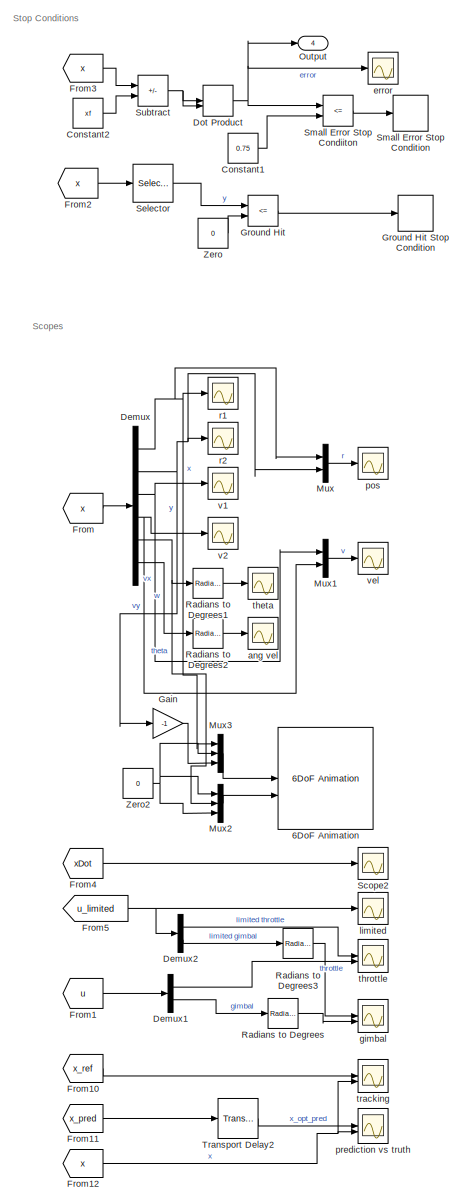
[diagram: root canvas - part 1/2, right side, full height]
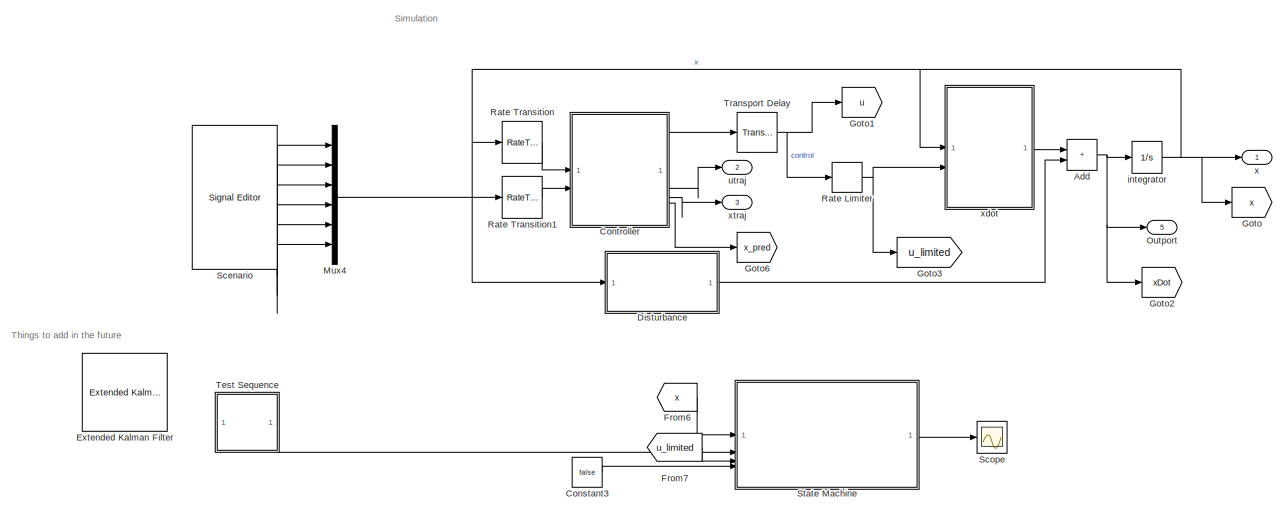
[diagram: root canvas - part 2/2, central region]
MODEL slx_7421cda2e43f
KIND model
CONFIG AbsTol = auto
CONFIG EnableMultiTasking = off
CONFIG FixedStep = auto
CONFIG MaxStep = auto
CONFIG MinStep = auto
CONFIG RelTol = 1e-3
CONFIG SampleTimeConstraint = Unconstrained
CONFIG SolverName = VariableStepAuto
CONFIG StartTime = 0.0
CONFIG StopTime = stop_time
WORKSPACE source: mxarray member
WORKSPACE com_error = 0
WORKSPACE controller_type: ControllerType (value not decoded)
WORKSPACE discrepancy = 0.5
WORKSPACE dtime = 0.3
WORKSPACE enable_turbulence = 0
WORKSPACE g = 9.8
WORKSPACE inertia_error = 0
WORKSPACE mass_error = 0
WORKSPACE max_gimbal_rate = 1
WORKSPACE max_iter = 400
WORKSPACE max_throttle_rate = 0.05
WORKSPACE nominal_val = 5
WORKSPACE optimization_time = 0.3
WORKSPACE steps = 50
WORKSPACE stop_time = 100
WORKSPACE u0 = [0.443891402715 0]
WORKSPACE vehicle: Vehicle (value not decoded)
WORKSPACE x0 = [100 100 0 0 1.57079632679 0]
WORKSPACE xf = [0 0 0 0 1.57079632679 0]
BLOCK [Reference] 6DoF Animation  REF=aerolibanim/6DoF Animation
  Commented = on
  SourceBlock = aerolibanim/6DoF Animation
  SourceType = 6DoF_Animation
BLOCK [Sum] Add
  IconShape = rectangular
BLOCK [Constant] Constant1
  Value = 0.75
BLOCK [Constant] Constant2
  Value = xf
BLOCK [Constant] Constant3
  Value = false
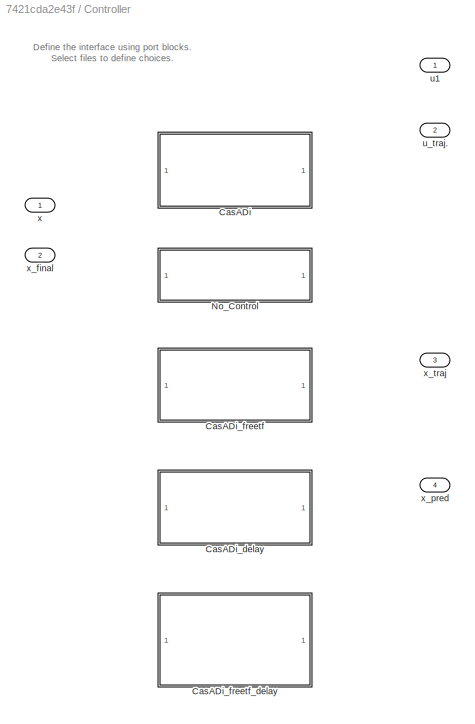
BLOCK [SubSystem] Controller
  Variant = on
  VariantChoicesEnumeration = ControllerType
  VariantChoicesSpecifier = {}
  VariantControlVariable = controller_type
BLOCK [SubSystem] Controller/CasADi
  ReferencedSubsystem = CasADi
  VariantControl = controller_type == ControllerType.CasADi
BLOCK [SubSystem] Controller/CasADi_delay
  ReferencedSubsystem = CasADi_delay
  VariantControl = controller_type == ControllerType.CasADi_delay
BLOCK [SubSystem] Controller/CasADi_freetf
  ReferencedSubsystem = CasADi_freetf
  VariantControl = controller_type == ControllerType.CasADi_freetf
BLOCK [SubSystem] Controller/CasADi_freetf_delay
  ReferencedSubsystem = CasADi_freetf_delay
  VariantControl = controller_type == ControllerType.CasADi_freetf_delay
BLOCK [SubSystem] Controller/No_Control
  ReferencedSubsystem = No_Control
  VariantControl = controller_type == ControllerType.No_Control
BLOCK [Outport] Controller/u1
BLOCK [Outport] Controller/u_traj.
  Port = 2
BLOCK [Inport] Controller/x
BLOCK [Inport] Controller/x_final
  Port = 2
BLOCK [Outport] Controller/x_pred
  Port = 4
BLOCK [Outport] Controller/x_traj
  Port = 3
BLOCK [Demux] Demux
  Outputs = 6
BLOCK [Demux] Demux1
  Outputs = 2
BLOCK [Demux] Demux2
  Outputs = 2
BLOCK [SubSystem] Disturbance
  ReferencedSubsystem = Disturbance
BLOCK [DotProduct] Dot Product
  OutDataTypeStr = Inherit: Inherit via internal rule
BLOCK [Reference] Extended Kalman Filter  REF=sharedTrackingLibrary/Extended Kalman Filter
  Commented = on
  LibrarySourceBlock = cstblocks/State Estimation/Extended Kalman Filter
  SourceBlock = sharedTrackingLibrary/Extended Kalman Filter
  SourceType = Extended Kalman Filter
BLOCK [From] From
  GotoTag = x
BLOCK [From] From1
  GotoTag = u
BLOCK [From] From10
  GotoTag = x_ref
BLOCK [From] From11
  GotoTag = x_pred
BLOCK [From] From12
  GotoTag = x
BLOCK [From] From2
  GotoTag = x
BLOCK [From] From3
  GotoTag = x
BLOCK [From] From4
  GotoTag = xDot
BLOCK [From] From5
  GotoTag = u_limited
BLOCK [From] From6
  GotoTag = x
BLOCK [From] From7
  GotoTag = u_limited
BLOCK [Gain] Gain
  Gain = -1
BLOCK [Goto] Goto
  GotoTag = x
BLOCK [Goto] Goto1
  GotoTag = u
BLOCK [Goto] Goto2
  GotoTag = xDot
BLOCK [Goto] Goto3
  GotoTag = u_limited
BLOCK [Goto] Goto6
  GotoTag = x_pred
BLOCK [RelationalOperator] Ground Hit
  InputSameDT = off
  Operator = <=
  OutDataTypeStr = boolean
  RndMeth = Simplest
BLOCK [Stop] Ground Hit Stop Condition
BLOCK [Mux] Mux
  DisplayOption = bar
  Inputs = 2
BLOCK [Mux] Mux1
  DisplayOption = bar
  Inputs = 2
BLOCK [Mux] Mux2
  DisplayOption = bar
  Inputs = 3
BLOCK [Mux] Mux3
  DisplayOption = bar
  Inputs = 3
BLOCK [Mux] Mux4
  DisplayOption = bar
  Inputs = 6
BLOCK [Outport] Outport
  Port = 5
  SignalName = x_dot
BLOCK [Outport] Output
  Port = 4
  SignalName = error
BLOCK [Reference] Radians to Degrees  REF=simulink_extras/Transformations/Radians
to Degrees
  SourceBlock = simulink_extras/Transformations/Radians\nto Degrees
  SourceType = RadiansToDegrees
BLOCK [Reference] Radians to Degrees1  REF=simulink_extras/Transformations/Radians
to Degrees
  SourceBlock = simulink_extras/Transformations/Radians\nto Degrees
  SourceType = RadiansToDegrees
BLOCK [Reference] Radians to Degrees2  REF=simulink_extras/Transformations/Radians
to Degrees
  SourceBlock = simulink_extras/Transformations/Radians\nto Degrees
  SourceType = RadiansToDegrees
BLOCK [Reference] Radians to Degrees3  REF=simulink_extras/Transformations/Radians
to Degrees
  SourceBlock = simulink_extras/Transformations/Radians\nto Degrees
  SourceType = RadiansToDegrees
BLOCK [RateLimiter] Rate Limiter
  FallingSlewLimit = [-max_throttle_rate -max_gimbal_rate]
  InitialCondition = u0
  RisingSlewLimit = [max_throttle_rate max_gimbal_rate]
  SampleTimeMode = inherited
BLOCK [RateTransition] Rate Transition
  InitialCondition = x0
  OutPortSampleTime = optimization_time
BLOCK [RateTransition] Rate Transition1
  InitialCondition = xf
  OutPortSampleTime = optimization_time
BLOCK [Reference] Scenario  REF=SignalEditorBlockLib/Signal Editor
  LibrarySourceBlock = simulink/Sources/Signal Editor
  SourceBlock = SignalEditorBlockLib/Signal Editor
  SourceType = SignalEditor
  UserDataPersistent = on
BLOCK [Scope] Scope
  Floating = off
  NumInputPorts = 1
  ScopeSpecificationString = Simulink.scopes.TimeScopeBlockCfg('CurrentConfiguration', extmgr.ConfigurationSet(extmgr.Configuration('Core','General UI',true),extmgr.Configuration('Core','Source UI',true),extmgr.Configuration('Sources','WiredSimulink',true,'DataLoggingVariableName','ScopeData11'),extmgr.Configuration('Visuals','Time Domain',true,'SerializedDisplays',{struct('MinYLimReal','0.75','MaxYLimReal','3.25','YLabelReal...<+1461ch>
BLOCK [Scope] Scope2
  Floating = off
  NumInputPorts = 1
  ScopeSpecificationString = Simulink.scopes.TimeScopeBlockCfg('CurrentConfiguration', extmgr.ConfigurationSet(extmgr.Configuration('Core','General UI',true),extmgr.Configuration('Core','Source UI',true),extmgr.Configuration('Sources','WiredSimulink',true,'DataLoggingVariableName','ScopeData11'),extmgr.Configuration('Visuals','Time Domain',true,'SerializedDisplays',{struct('MinYLimReal','-51.1711','MaxYLimReal','35.55627','YL...<+1540ch>
BLOCK [Selector] Selector
  IndexOptions = Index vector (dialog)
  Indices = [2]
  InputPortWidth = 6
  OutputSizes = 1
BLOCK [RelationalOperator] Small Error Stop Condiiton
  InputSameDT = off
  Operator = <=
  OutDataTypeStr = boolean
  RndMeth = Simplest
BLOCK [Stop] Small Error Stop Condition
BLOCK [SubSystem] State Machine
  ReferencedSubsystem = State_Machine
BLOCK [Sum] Subtract
  IconShape = rectangular
  Inputs = +-
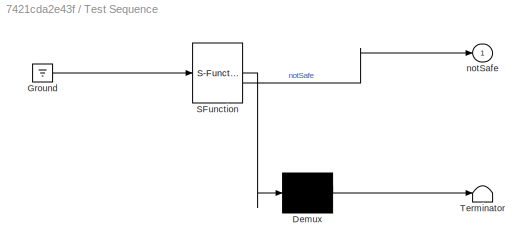
BLOCK [SubSystem] Test Sequence
  ErrorFcn = Stateflow.Translate.translate
  PermitHierarchicalResolution = ExplicitOnly
  SFBlockType = Test Sequence
  TreatAsAtomicUnit = on
BLOCK [Demux] Test Sequence/ Demux 
  Outputs = 1
BLOCK [Ground] Test Sequence/ Ground 
BLOCK [S-Function] Test Sequence/ SFunction 
  EnableBusSupport = on
  FunctionName = sf_sfun
  Parameters = 1
  PortCounts = [1 2]
  SFcnIsStateOwnerBlock = off
  SFunctionDeploymentMode = off
  Tag = Stateflow S-Function 4
BLOCK [Terminator] Test Sequence/ Terminator 
BLOCK [Outport] Test Sequence/notSafe
BLOCK [TransportDelay] Transport Delay
  DelayTime = optimization_time
  InitialOutput = u0
BLOCK [TransportDelay] Transport Delay2
  DelayTime = optimization_time
  InitialOutput = x0'
BLOCK [Constant] Zero
  OutDataTypeStr = Inherit: Inherit via back propagation
  Value = 0
BLOCK [Constant] Zero2
  OutDataTypeStr = Inherit: Inherit via back propagation
  Value = 0
BLOCK [Scope] ang vel
  Floating = off
  NumInputPorts = 1
  ScopeSpecificationString = Simulink.scopes.TimeScopeBlockCfg('CurrentConfiguration', extmgr.ConfigurationSet(extmgr.Configuration('Core','General UI',true),extmgr.Configuration('Core','Source UI',true),extmgr.Configuration('Sources','WiredSimulink',true,'DataLoggingVariableName','ScopeData14'),extmgr.Configuration('Visuals','Time Domain',true,'SerializedDisplays',{struct('MinYLimReal','-2.37191','MaxYLimReal','13.59448','YL...<+1497ch>
BLOCK [Scope] error
  Floating = off
  NumInputPorts = 1
  ScopeSpecificationString = Simulink.scopes.TimeScopeBlockCfg('CurrentConfiguration', extmgr.ConfigurationSet(extmgr.Configuration('Core','General UI',true),extmgr.Configuration('Core','Source UI',true),extmgr.Configuration('Sources','WiredSimulink',true,'DataLoggingVariableName','ScopeData2'),extmgr.Configuration('Visuals','Time Domain',true,'SerializedDisplays',{struct('MinYLimReal','-68.18493','MaxYLimReal','209.23133','Y...<+1542ch>
BLOCK [Scope] gimbal
  Floating = off
  NumInputPorts = 2
  ScopeSpecificationString = Simulink.scopes.TimeScopeBlockCfg('CurrentConfiguration', extmgr.ConfigurationSet(extmgr.Configuration('Core','General UI',true),extmgr.Configuration('Core','Source UI',true),extmgr.Configuration('Sources','WiredSimulink',true,'DataLoggingVariableName','ScopeData15'),extmgr.Configuration('Visuals','Time Domain',true,'SerializedDisplays',{struct('MinYLimReal','-0.0000000000034','MaxYLimReal','0.000...<+1632ch>
BLOCK [Integrator] integrator
  InitialCondition = x0
BLOCK [Scope] limited
  Floating = off
  NumInputPorts = 1
  ScopeSpecificationString = Simulink.scopes.TimeScopeBlockCfg('CurrentConfiguration', extmgr.ConfigurationSet(extmgr.Configuration('Core','General UI',true),extmgr.Configuration('Core','Source UI',true),extmgr.Configuration('Sources','WiredSimulink',true,'DataLoggingVariableName','ScopeData16'),extmgr.Configuration('Visuals','Time Domain',true,'SerializedDisplays',{struct('MinYLimReal','-0.27698','MaxYLimReal','0.74749','YLa...<+1524ch>
BLOCK [Scope] pos
  Floating = off
  NumInputPorts = 1
  ScopeSpecificationString = Simulink.scopes.TimeScopeBlockCfg('CurrentConfiguration', extmgr.ConfigurationSet(extmgr.Configuration('Core','General UI',true),extmgr.Configuration('Core','Source UI',true),extmgr.Configuration('Sources','WiredSimulink',true,'DataLoggingVariableName','ScopeData17'),extmgr.Configuration('Visuals','Time Domain',true,'SerializedDisplays',{struct('MinYLimReal','-58.15853','MaxYLimReal','450.9065','Y...<+1508ch>
BLOCK [Scope] prediction vs truth
  Floating = off
  NumInputPorts = 2
  ScopeSpecificationString = Simulink.scopes.TimeScopeBlockCfg('CurrentConfiguration', extmgr.ConfigurationSet(extmgr.Configuration('Core','General UI',true),extmgr.Configuration('Core','Source UI',true),extmgr.Configuration('Sources','WiredSimulink',true,'DataLoggingVariableName','ScopeData18'),extmgr.Configuration('Visuals','Time Domain',true,'SerializedDisplays',{struct('MinYLimReal','-23.38198','MaxYLimReal','115.17042','...<+1627ch>
BLOCK [Scope] r1
  Floating = off
  NumInputPorts = 1
  ScopeSpecificationString = Simulink.scopes.TimeScopeBlockCfg('CurrentConfiguration', extmgr.ConfigurationSet(extmgr.Configuration('Core','General UI',true),extmgr.Configuration('Core','Source UI',true),extmgr.Configuration('Sources','WiredSimulink',true,'DataLoggingVariableName','ScopeData19'),extmgr.Configuration('Visuals','Time Domain',true,'SerializedDisplays',{struct('MinYLimReal','-0.000000000000003','MaxYLimReal','0.0...<+1530ch>
BLOCK [Scope] r2
  Floating = off
  NumInputPorts = 1
  ScopeSpecificationString = Simulink.scopes.TimeScopeBlockCfg('CurrentConfiguration', extmgr.ConfigurationSet(extmgr.Configuration('Core','General UI',true),extmgr.Configuration('Core','Source UI',true),extmgr.Configuration('Sources','WiredSimulink',true,'DataLoggingVariableName','ScopeData20'),extmgr.Configuration('Visuals','Time Domain',true,'SerializedDisplays',{struct('MinYLimReal','-1.25','MaxYLimReal','11.25','YLabelRe...<+1480ch>
BLOCK [Scope] theta
  Floating = off
  NumInputPorts = 1
  ScopeSpecificationString = Simulink.scopes.TimeScopeBlockCfg('CurrentConfiguration', extmgr.ConfigurationSet(extmgr.Configuration('Core','General UI',true),extmgr.Configuration('Core','Source UI',true),extmgr.Configuration('Sources','WiredSimulink',true,'DataLoggingVariableName','ScopeData21'),extmgr.Configuration('Visuals','Time Domain',true,'SerializedDisplays',{struct('MinYLimReal','52.15485','MaxYLimReal','103.56413','Y...<+1530ch>
BLOCK [Scope] throttle
  Floating = off
  NumInputPorts = 2
  ScopeSpecificationString = Simulink.scopes.TimeScopeBlockCfg('CurrentConfiguration', extmgr.ConfigurationSet(extmgr.Configuration('Core','General UI',true),extmgr.Configuration('Core','Source UI',true),extmgr.Configuration('Sources','WiredSimulink',true,'DataLoggingVariableName','ScopeData22'),extmgr.Configuration('Visuals','Time Domain',true,'SerializedDisplays',{struct('MinYLimReal','0.19335','MaxYLimReal','0.71948','YLab...<+1580ch>
BLOCK [Scope] tracking
  Floating = off
  NumInputPorts = 2
  ScopeSpecificationString = Simulink.scopes.TimeScopeBlockCfg('CurrentConfiguration', extmgr.ConfigurationSet(extmgr.Configuration('Core','General UI',true),extmgr.Configuration('Core','Source UI',true),extmgr.Configuration('Sources','WiredSimulink',true,'DataLoggingVariableName','ScopeData23'),extmgr.Configuration('Visuals','Time Domain',true,'SerializedDisplays',{struct('MinYLimReal','-23.30608','MaxYLimReal','114.98798','...<+1548ch>
BLOCK [Outport] utraj
  Port = 2
  SignalName = utraj
BLOCK [Scope] v1
  Floating = off
  NumInputPorts = 1
  ScopeSpecificationString = Simulink.scopes.TimeScopeBlockCfg('CurrentConfiguration', extmgr.ConfigurationSet(extmgr.Configuration('Core','General UI',true),extmgr.Configuration('Core','Source UI',true),extmgr.Configuration('Sources','WiredSimulink',true,'DataLoggingVariableName','ScopeData24'),extmgr.Configuration('Visuals','Time Domain',true,'SerializedDisplays',{struct('MinYLimReal','-0.0000000000000038','MaxYLimReal','0....<+1539ch>
BLOCK [Scope] v2
  Floating = off
  NumInputPorts = 1
  ScopeSpecificationString = Simulink.scopes.TimeScopeBlockCfg('CurrentConfiguration', extmgr.ConfigurationSet(extmgr.Configuration('Core','General UI',true),extmgr.Configuration('Core','Source UI',true),extmgr.Configuration('Sources','WiredSimulink',true,'DataLoggingVariableName','ScopeData25'),extmgr.Configuration('Visuals','Time Domain',true,'SerializedDisplays',{struct('MinYLimReal','-2.32296','MaxYLimReal','0.25811','YLa...<+1451ch>
BLOCK [Scope] vel
  Floating = off
  NumInputPorts = 1
  ScopeSpecificationString = Simulink.scopes.TimeScopeBlockCfg('CurrentConfiguration', extmgr.ConfigurationSet(extmgr.Configuration('Core','General UI',true),extmgr.Configuration('Core','Source UI',true),extmgr.Configuration('Sources','WiredSimulink',true,'DataLoggingVariableName','ScopeData26'),extmgr.Configuration('Visuals','Time Domain',true,'SerializedDisplays',{struct('MinYLimReal','-1.25712','MaxYLimReal','0.7237','YLab...<+1500ch>
BLOCK [Outport] x
  SignalName = x
BLOCK [SubSystem] xdot
  ReferencedSubsystem = EoM_3DoF
BLOCK [Outport] xtraj
  Port = 3
  SignalName = xtraj
ANNOTATION (root): Scopes
ANNOTATION (root): Simulation
ANNOTATION (root): Stop Conditions
ANNOTATION (root): Things to add in the future
ANNOTATION Controller: Define the interface using port blocks. Select files to define choices.
NET Add:1 -> Goto2:1, Outport:1, integrator:1
LINE Constant1:1 -> Small Error Stop Condiiton:2
LINE Constant2:1 -> Subtract:2
LINE Constant3:1 -> State Machine:4
LINE Controller:1 -> Transport Delay:1
LINE Controller:2 -> utraj:1
LINE Controller:3 -> xtraj:1
LINE Controller:4 -> Goto6:1
LINE Demux1:1 -> throttle:2
LINE Demux1:2 -> Radians to Degrees:1
LINE Demux2:1 -> throttle:1
LINE Demux2:2 -> Radians to Degrees3:1
NET Demux:1 -> Mux3:1, Mux:1, r1:1
NET Demux:2 -> Gain:1, Mux:2, r2:1
NET Demux:3 -> Mux1:1, v1:1
NET Demux:4 -> Mux1:2, v2:1
NET Demux:5 -> Mux2:2, Radians to Degrees1:1
LINE Demux:6 -> Radians to Degrees2:1
LINE Disturbance:1 -> Add:2
NET Dot Product:1 -> Output:1, Small Error Stop Condiiton:1, error:1
LINE From10:1 -> tracking:1
LINE From11:1 -> Transport Delay2:1
NET From12:1 -> prediction vs truth:2, tracking:2
LINE From1:1 -> Demux1:1
LINE From2:1 -> Selector:1
LINE From3:1 -> Subtract:1
LINE From4:1 -> Scope2:1
NET From5:1 -> Demux2:1, limited:1
LINE From6:1 -> State Machine:1
LINE From7:1 -> State Machine:3
LINE From:1 -> Demux:1
LINE Gain:1 -> Mux3:3
LINE Ground Hit:1 -> Ground Hit Stop Condition:1
LINE Mux1:1 -> vel:1
LINE Mux2:1 -> 6DoF Animation:2
LINE Mux3:1 -> 6DoF Animation:1
LINE Mux4:1 -> Rate Transition1:1
LINE Mux:1 -> pos:1
LINE Radians to Degrees1:1 -> theta:1
LINE Radians to Degrees2:1 -> ang vel:1
LINE Radians to Degrees3:1 -> gimbal:1
LINE Radians to Degrees:1 -> gimbal:2
NET Rate Limiter:1 -> Goto3:1, xdot:2
LINE Rate Transition1:1 -> Controller:2
LINE Rate Transition:1 -> Controller:1
LINE Scenario:1 -> Mux4:1
LINE Scenario:2 -> Mux4:2
LINE Scenario:3 -> Mux4:3
LINE Scenario:4 -> Mux4:4
LINE Scenario:5 -> Mux4:5
LINE Scenario:6 -> Mux4:6
LINE Selector:1 -> Ground Hit:1
LINE Small Error Stop Condiiton:1 -> Small Error Stop Condition:1
LINE State Machine:1 -> Scope:1
NET Subtract:1 -> Dot Product:1, Dot Product:2
LINE Test Sequence:1 -> State Machine:2
LINE Transport Delay2:1 -> prediction vs truth:1
NET Transport Delay:1 -> Goto1:1, Rate Limiter:1
NET Zero2:1 -> Mux2:1, Mux2:3, Mux3:2
LINE Zero:1 -> Ground Hit:2
NET integrator:1 -> Disturbance:1, Goto:1, Rate Transition:1, x:1, xdot:1
LINE xdot:1 -> Add:1
note: NET lines group one-source signal fan-out (src -> all destinations, sorted); 1:1 wires keep LINE
CHART Test Sequence states=3 transitions=3
  STATE_LABEL 'Scenario_1'
  STATE_LABEL 'step_1'
  STATE_LABEL 'step_2\nnotSafe = true;'
  STATE_LABEL '[\nafter(5, sec)\n]'
  STATE_LABEL 'step_1'
  STATE_LABEL 'step_2\nnotSafe = true;'
CHART  states=0 transitions=0
